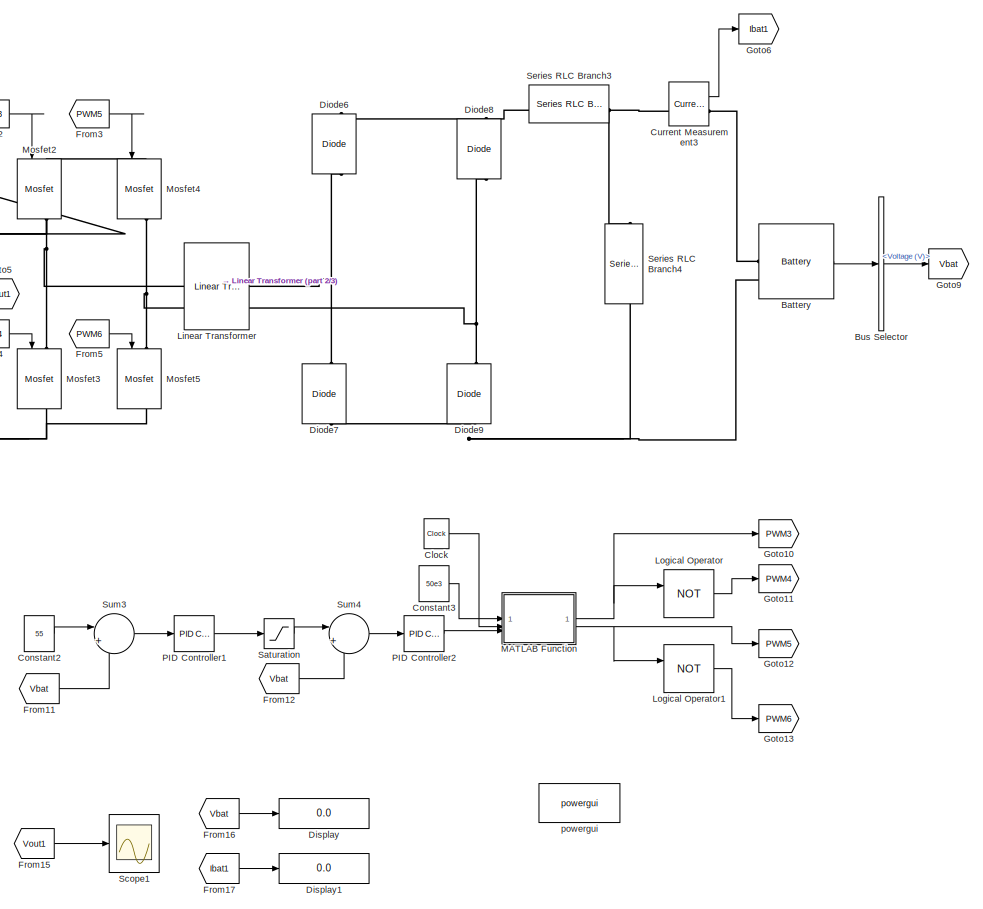
[diagram: root canvas - part 1/3, right side, full height]
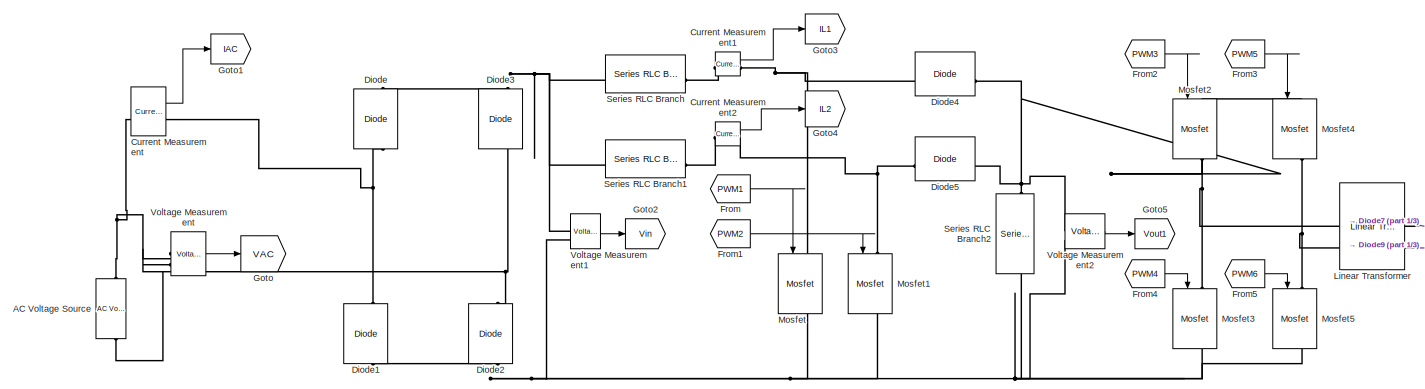
[diagram: root canvas - part 2/3, top center region]
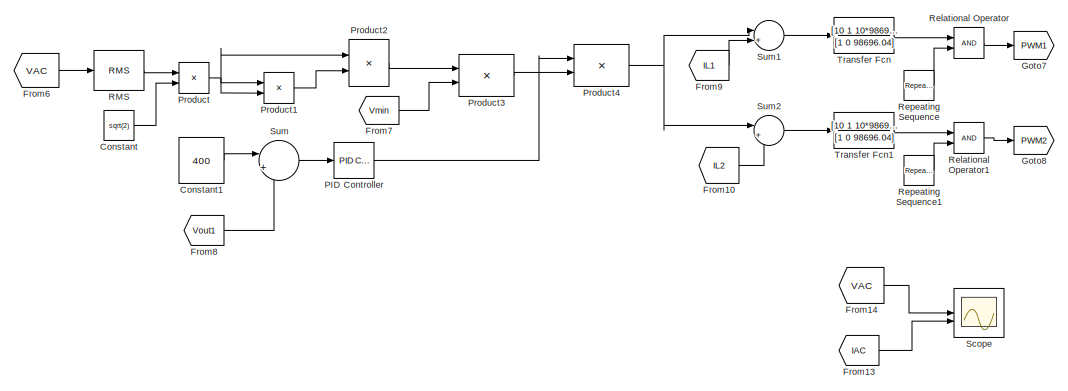
[diagram: root canvas - part 3/3, bottom left region]
MODEL slx_d958ee501d66
KIND model
CONFIG AbsTol = auto
CONFIG EnableMultiTasking = off
CONFIG FixedStep = 1e-6
CONFIG MaxStep = auto
CONFIG MinStep = auto
CONFIG RelTol = 1e-3
CONFIG SampleTimeConstraint = Unconstrained
CONFIG SolverName = ode8
CONFIG StartTime = 0.0
CONFIG StopTime = 1.5
BLOCK [Reference] AC Voltage Source  REF=spsACVoltageSourceLib/AC Voltage Source
  LibrarySourceBlock = sps_lib/Sources/AC Voltage Source
  SourceBlock = spsACVoltageSourceLib/AC Voltage Source
  SourceType = AC Voltage Source
BLOCK [Reference] Battery  REF=spsBatteryLib/Battery
  LibrarySourceBlock = sps_lib/Sources/Battery
  SourceBlock = spsBatteryLib/Battery
  SourceType = Battery
BLOCK [BusSelector] Bus Selector
  OutputSignals = Voltage (V)
BLOCK [Clock] Clock
BLOCK [Constant] Constant
  Value = sqrt(2)
BLOCK [Constant] Constant1
  Value = 400
BLOCK [Constant] Constant2
  Value = 55
BLOCK [Constant] Constant3
  Value = 50e3
BLOCK [Reference] Current Measurement  REF=spsCurrentMeasurementLib/Current Measurement
  LibrarySourceBlock = sps_lib/Sensors and Measurements/Current Measurement
  SourceBlock = spsCurrentMeasurementLib/Current Measurement
  SourceType = Current Measurement
  UserDataPersistent = on
BLOCK [Reference] Current Measurement1  REF=spsCurrentMeasurementLib/Current Measurement
  LibrarySourceBlock = sps_lib/Sensors and Measurements/Current Measurement
  SourceBlock = spsCurrentMeasurementLib/Current Measurement
  SourceType = Current Measurement
  UserDataPersistent = on
BLOCK [Reference] Current Measurement2  REF=spsCurrentMeasurementLib/Current Measurement
  LibrarySourceBlock = sps_lib/Sensors and Measurements/Current Measurement
  SourceBlock = spsCurrentMeasurementLib/Current Measurement
  SourceType = Current Measurement
  UserDataPersistent = on
BLOCK [Reference] Current Measurement3  REF=spsCurrentMeasurementLib/Current Measurement
  LibrarySourceBlock = sps_lib/Sensors and Measurements/Current Measurement
  SourceBlock = spsCurrentMeasurementLib/Current Measurement
  SourceType = Current Measurement
  UserDataPersistent = on
BLOCK [Reference] Diode  REF=spsDiodeLib/Diode
  LibrarySourceBlock = sps_lib/Power Electronics/Diode
  NameLocation = right
  SourceBlock = spsDiodeLib/Diode
  SourceType = Diode
BLOCK [Reference] Diode1  REF=spsDiodeLib/Diode
  LibrarySourceBlock = sps_lib/Power Electronics/Diode
  NameLocation = right
  SourceBlock = spsDiodeLib/Diode
  SourceType = Diode
BLOCK [Reference] Diode2  REF=spsDiodeLib/Diode
  LibrarySourceBlock = sps_lib/Power Electronics/Diode
  NameLocation = right
  SourceBlock = spsDiodeLib/Diode
  SourceType = Diode
BLOCK [Reference] Diode3  REF=spsDiodeLib/Diode
  LibrarySourceBlock = sps_lib/Power Electronics/Diode
  NameLocation = right
  SourceBlock = spsDiodeLib/Diode
  SourceType = Diode
BLOCK [Reference] Diode4  REF=spsDiodeLib/Diode
  LibrarySourceBlock = sps_lib/Power Electronics/Diode
  SourceBlock = spsDiodeLib/Diode
  SourceType = Diode
BLOCK [Reference] Diode5  REF=spsDiodeLib/Diode
  LibrarySourceBlock = sps_lib/Power Electronics/Diode
  SourceBlock = spsDiodeLib/Diode
  SourceType = Diode
BLOCK [Reference] Diode6  REF=spsDiodeLib/Diode
  LibrarySourceBlock = sps_lib/Power Electronics/Diode
  NameLocation = right
  SourceBlock = spsDiodeLib/Diode
  SourceType = Diode
BLOCK [Reference] Diode7  REF=spsDiodeLib/Diode
  LibrarySourceBlock = sps_lib/Power Electronics/Diode
  NameLocation = right
  SourceBlock = spsDiodeLib/Diode
  SourceType = Diode
BLOCK [Reference] Diode8  REF=spsDiodeLib/Diode
  LibrarySourceBlock = sps_lib/Power Electronics/Diode
  NameLocation = right
  SourceBlock = spsDiodeLib/Diode
  SourceType = Diode
BLOCK [Reference] Diode9  REF=spsDiodeLib/Diode
  LibrarySourceBlock = sps_lib/Power Electronics/Diode
  NameLocation = right
  SourceBlock = spsDiodeLib/Diode
  SourceType = Diode
BLOCK [Display] Display
  Decimation = 1
BLOCK [Display] Display1
  Decimation = 1
BLOCK [From] From
  GotoTag = PWM1
BLOCK [From] From1
  GotoTag = PWM2
BLOCK [From] From10
  GotoTag = IL2
BLOCK [From] From11
  GotoTag = Vbat
BLOCK [From] From12
  GotoTag = Vbat
BLOCK [From] From13
  GotoTag = IAC
BLOCK [From] From14
  GotoTag = VAC
BLOCK [From] From15
  GotoTag = Vout1
BLOCK [From] From16
  GotoTag = Vbat
BLOCK [From] From17
  GotoTag = Ibat1
BLOCK [From] From2
  GotoTag = PWM3
BLOCK [From] From3
  GotoTag = PWM5
BLOCK [From] From4
  GotoTag = PWM4
BLOCK [From] From5
  GotoTag = PWM6
BLOCK [From] From6
  GotoTag = VAC
BLOCK [From] From7
  GotoTag = Vmin
BLOCK [From] From8
  GotoTag = Vout1
BLOCK [From] From9
  GotoTag = IL1
BLOCK [Goto] Goto
  GotoTag = VAC
BLOCK [Goto] Goto1
  GotoTag = IAC
BLOCK [Goto] Goto10
  GotoTag = PWM3
BLOCK [Goto] Goto11
  GotoTag = PWM4
BLOCK [Goto] Goto12
  GotoTag = PWM5
BLOCK [Goto] Goto13
  GotoTag = PWM6
BLOCK [Goto] Goto2
  GotoTag = Vin
BLOCK [Goto] Goto3
  GotoTag = IL1
BLOCK [Goto] Goto4
  GotoTag = IL2
BLOCK [Goto] Goto5
  GotoTag = Vout1
BLOCK [Goto] Goto6
  GotoTag = Ibat1
BLOCK [Goto] Goto7
  GotoTag = PWM1
BLOCK [Goto] Goto8
  GotoTag = PWM2
BLOCK [Goto] Goto9
  GotoTag = Vbat
BLOCK [Reference] Linear Transformer  REF=spsLinearTransformerLib/Linear Transformer
  LibrarySourceBlock = sps_lib/Power Grid Elements/Linear Transformer
  SourceBlock = spsLinearTransformerLib/Linear Transformer
  SourceType = Linear Transformer
BLOCK [Logic] Logical Operator
  AllPortsSameDT = off
  Operator = NOT
  OutDataTypeStr = boolean
BLOCK [Logic] Logical Operator1
  AllPortsSameDT = off
  Operator = NOT
  OutDataTypeStr = boolean
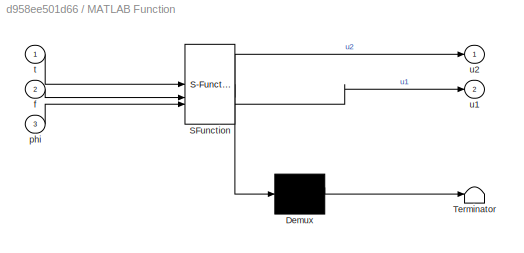
BLOCK [SubSystem] MATLAB Function
  ErrorFcn = Stateflow.Translate.translate
  PermitHierarchicalResolution = ExplicitOnly
  SFBlockType = MATLAB Function
  TreatAsAtomicUnit = on
BLOCK [Demux] MATLAB Function/ Demux 
  Outputs = 1
BLOCK [S-Function] MATLAB Function/ SFunction 
  EnableBusSupport = on
  FunctionName = sf_sfun
  PortCounts = [3 3]
  SFcnIsStateOwnerBlock = off
  SFunctionDeploymentMode = off
  Tag = Stateflow S-Function 2
BLOCK [Terminator] MATLAB Function/ Terminator 
BLOCK [Inport] MATLAB Function/f
  Port = 2
BLOCK [Inport] MATLAB Function/phi
  Port = 3
BLOCK [Inport] MATLAB Function/t
BLOCK [Outport] MATLAB Function/u1
  Port = 2
BLOCK [Outport] MATLAB Function/u2
BLOCK [Reference] Mosfet  REF=spsMosfetLib/Mosfet
  LibrarySourceBlock = sps_lib/Power Electronics/Mosfet
  NameLocation = left
  SourceBlock = spsMosfetLib/Mosfet
  SourceType = Mosfet
BLOCK [Reference] Mosfet1  REF=spsMosfetLib/Mosfet
  LibrarySourceBlock = sps_lib/Power Electronics/Mosfet
  NameLocation = left
  SourceBlock = spsMosfetLib/Mosfet
  SourceType = Mosfet
BLOCK [Reference] Mosfet2  REF=spsMosfetLib/Mosfet
  LibrarySourceBlock = sps_lib/Power Electronics/Mosfet
  NameLocation = left
  SourceBlock = spsMosfetLib/Mosfet
  SourceType = Mosfet
BLOCK [Reference] Mosfet3  REF=spsMosfetLib/Mosfet
  LibrarySourceBlock = sps_lib/Power Electronics/Mosfet
  NameLocation = left
  SourceBlock = spsMosfetLib/Mosfet
  SourceType = Mosfet
BLOCK [Reference] Mosfet4  REF=spsMosfetLib/Mosfet
  LibrarySourceBlock = sps_lib/Power Electronics/Mosfet
  NameLocation = left
  SourceBlock = spsMosfetLib/Mosfet
  SourceType = Mosfet
BLOCK [Reference] Mosfet5  REF=spsMosfetLib/Mosfet
  LibrarySourceBlock = sps_lib/Power Electronics/Mosfet
  NameLocation = left
  SourceBlock = spsMosfetLib/Mosfet
  SourceType = Mosfet
BLOCK [Reference] PID Controller  REF=slpidlib/PID Controller
  LibrarySourceBlock = simulink/Continuous/PID Controller
  SourceBlock = slpidlib/PID Controller
  SourceType = PID 1dof
BLOCK [Reference] PID Controller1  REF=slpidlib/PID Controller
  LibrarySourceBlock = simulink/Continuous/PID Controller
  SourceBlock = slpidlib/PID Controller
  SourceType = PID 1dof
BLOCK [Reference] PID Controller2  REF=slpidlib/PID Controller
  LibrarySourceBlock = simulink/Continuous/PID Controller
  SourceBlock = slpidlib/PID Controller
  SourceType = PID 1dof
BLOCK [Product] Product
BLOCK [Product] Product1
BLOCK [Product] Product2
  Inputs = /*
BLOCK [Product] Product3
BLOCK [Product] Product4
BLOCK [Reference] RMS  REF=spsRMSLib/RMS
  LibrarySourceBlock = sps_lib/Sensors and Measurements/RMS
  SourceBlock = spsRMSLib/RMS
  SourceType = RMS
BLOCK [RelationalOperator] Relational Operator
  InputSameDT = off
  OutDataTypeStr = boolean
  RndMeth = Simplest
BLOCK [RelationalOperator] Relational Operator1
  InputSameDT = off
  OutDataTypeStr = boolean
  RndMeth = Simplest
BLOCK [Reference] Repeating Sequence  REF=simulink/Sources/Repeating
Sequence
  SourceBlock = simulink/Sources/Repeating\nSequence
  SourceType = Repeating table
BLOCK [Reference] Repeating Sequence1  REF=simulink/Sources/Repeating
Sequence
  SourceBlock = simulink/Sources/Repeating\nSequence
  SourceType = Repeating table
BLOCK [Saturate] Saturation
  LowerLimit = 0
  UpperLimit = 37.5
BLOCK [Scope] Scope
  Floating = off
  NumInputPorts = 2
  ScopeSpecificationString = Simulink.scopes.TimeScopeBlockCfg('CurrentConfiguration', extmgr.ConfigurationSet(extmgr.Configuration('Core','General UI',true),extmgr.Configuration('Core','Source UI',true),extmgr.Configuration('Sources','WiredSimulink',true),extmgr.Configuration('Visuals','Time Domain',true,'SerializedDisplays',{struct('MinYLimReal','-406.5864','MaxYLimReal','406.5864','YLabelReal','','MinYLimMag',' 0.00000','M...<+2127ch>
BLOCK [Scope] Scope1
  Floating = off
  NumInputPorts = 1
  ScopeSpecificationString = Simulink.scopes.TimeScopeBlockCfg('CurrentConfiguration', extmgr.ConfigurationSet(extmgr.Configuration('Core','General UI',true),extmgr.Configuration('Core','Source UI',true),extmgr.Configuration('Sources','WiredSimulink',true,'DataLoggingVariableName','ScopeData1'),extmgr.Configuration('Visuals','Time Domain',true,'SerializedDisplays',{struct('MinYLimReal','-52.64967','MaxYLimReal','473.84707','Y...<+1431ch>
BLOCK [Reference] Series RLC Branch  REF=spsSeriesRLCBranchLib/Series RLC Branch
  LibrarySourceBlock = sps_lib/Passives/Series RLC Branch
  SourceBlock = spsSeriesRLCBranchLib/Series RLC Branch
  SourceType = Series RLC Branch
BLOCK [Reference] Series RLC Branch1  REF=spsSeriesRLCBranchLib/Series RLC Branch
  LibrarySourceBlock = sps_lib/Passives/Series RLC Branch
  SourceBlock = spsSeriesRLCBranchLib/Series RLC Branch
  SourceType = Series RLC Branch
BLOCK [Reference] Series RLC Branch2  REF=spsSeriesRLCBranchLib/Series RLC Branch
  LibrarySourceBlock = sps_lib/Passives/Series RLC Branch
  NameLocation = left
  SourceBlock = spsSeriesRLCBranchLib/Series RLC Branch
  SourceType = Series RLC Branch
BLOCK [Reference] Series RLC Branch3  REF=spsSeriesRLCBranchLib/Series RLC Branch
  LibrarySourceBlock = sps_lib/Passives/Series RLC Branch
  SourceBlock = spsSeriesRLCBranchLib/Series RLC Branch
  SourceType = Series RLC Branch
BLOCK [Reference] Series RLC Branch4  REF=spsSeriesRLCBranchLib/Series RLC Branch
  LibrarySourceBlock = sps_lib/Passives/Series RLC Branch
  NameLocation = left
  SourceBlock = spsSeriesRLCBranchLib/Series RLC Branch
  SourceType = Series RLC Branch
BLOCK [Sum] Sum
  Inputs = |+-
BLOCK [Sum] Sum1
  Inputs = |+-
BLOCK [Sum] Sum2
  Inputs = |+-
BLOCK [Sum] Sum3
  Inputs = |+-
BLOCK [Sum] Sum4
  Inputs = |+-
BLOCK [TransferFcn] Transfer Fcn
  Denominator = [1 0 98696.04]
  Numerator = [10 1 10*98696.04]
BLOCK [TransferFcn] Transfer Fcn1
  Denominator = [1 0 98696.04]
  Numerator = [10 1 10*98696.04]
BLOCK [Reference] Voltage Measurement  REF=spsVoltageMeasurementLib/Voltage Measurement
  LibrarySourceBlock = sps_lib/Sensors and Measurements/Voltage Measurement
  SourceBlock = spsVoltageMeasurementLib/Voltage Measurement
  SourceType = Voltage Measurement
  UserDataPersistent = on
BLOCK [Reference] Voltage Measurement1  REF=spsVoltageMeasurementLib/Voltage Measurement
  LibrarySourceBlock = sps_lib/Sensors and Measurements/Voltage Measurement
  SourceBlock = spsVoltageMeasurementLib/Voltage Measurement
  SourceType = Voltage Measurement
  UserDataPersistent = on
BLOCK [Reference] Voltage Measurement2  REF=spsVoltageMeasurementLib/Voltage Measurement
  LibrarySourceBlock = sps_lib/Sensors and Measurements/Voltage Measurement
  SourceBlock = spsVoltageMeasurementLib/Voltage Measurement
  SourceType = Voltage Measurement
  UserDataPersistent = on
BLOCK [Reference] powergui  REF=sps_lib/powergui
  LibrarySourceBlock = sps_lib/powergui
  Priority = 1
  SourceBlock = sps_lib/powergui
  SourceType = PSB option menu block
LINE Battery:1 -> Bus Selector:1
LINE Bus Selector:1 -> Goto9:1
LINE Clock:1 -> MATLAB Function:2
LINE Constant1:1 -> Sum:1
LINE Constant2:1 -> Sum3:1
LINE Constant3:1 -> MATLAB Function:1
LINE Constant:1 -> Product:2
LINE Current Measurement1:1 -> Goto3:1
LINE Current Measurement2:1 -> Goto4:1
LINE Current Measurement3:1 -> Goto6:1
LINE Current Measurement:1 -> Goto1:1
LINE From10:1 -> Sum2:2
LINE From11:1 -> Sum3:2
LINE From12:1 -> Sum4:2
LINE From13:1 -> Scope:2
LINE From14:1 -> Scope:1
LINE From15:1 -> Scope1:1
LINE From16:1 -> Display:1
LINE From17:1 -> Display1:1
LINE From1:1 -> Mosfet1:1
LINE From2:1 -> Mosfet2:1
LINE From3:1 -> Mosfet4:1
LINE From4:1 -> Mosfet3:1
LINE From5:1 -> Mosfet5:1
LINE From6:1 -> RMS:1
LINE From7:1 -> Product3:2
LINE From8:1 -> Sum:2
LINE From9:1 -> Sum1:2
LINE From:1 -> Mosfet:1
LINE Logical Operator1:1 -> Goto13:1
LINE Logical Operator:1 -> Goto11:1
NET MATLAB Function:1 -> Goto10:1, Logical Operator:1
NET MATLAB Function:2 -> Goto12:1, Logical Operator1:1
LINE PID Controller1:1 -> Saturation:1
LINE PID Controller2:1 -> MATLAB Function:3
LINE PID Controller:1 -> Product4:1
LINE Product1:1 -> Product2:2
LINE Product2:1 -> Product3:1
LINE Product3:1 -> Product4:2
NET Product4:1 -> Sum1:1, Sum2:1
NET Product:1 -> Product1:1, Product1:2, Product2:1
LINE RMS:1 -> Product:1
LINE Relational Operator1:1 -> Goto8:1
LINE Relational Operator:1 -> Goto7:1
LINE Repeating Sequence1:1 -> Relational Operator1:2
LINE Repeating Sequence:1 -> Relational Operator:2
LINE Saturation:1 -> Sum4:1
LINE Sum1:1 -> Transfer Fcn:1
LINE Sum2:1 -> Transfer Fcn1:1
LINE Sum3:1 -> PID Controller1:1
LINE Sum4:1 -> PID Controller2:1
LINE Sum:1 -> PID Controller:1
LINE Transfer Fcn1:1 -> Relational Operator1:1
LINE Transfer Fcn:1 -> Relational Operator:1
LINE Voltage Measurement1:1 -> Goto2:1
LINE Voltage Measurement2:1 -> Goto5:1
LINE Voltage Measurement:1 -> Goto:1
PNET net1: AC Voltage Source:LConn1 -- Diode2:RConn1 -- Diode3:LConn1 -- Voltage Measurement:LConn2
PNET net2: AC Voltage Source:RConn1 -- Current Measurement:LConn1 -- Voltage Measurement:LConn1
PLINE Battery:LConn1 -- Current Measurement3:RConn1
PNET net3: Battery:LConn2 -- Diode7:LConn1 -- Diode9:LConn1 -- Series RLC Branch4:RConn1
PLINE Current Measurement1:LConn1 -- Series RLC Branch:RConn1
PNET net4: Current Measurement1:RConn1 -- Diode4:LConn1 -- Mosfet:LConn1
PLINE Current Measurement2:LConn1 -- Series RLC Branch1:RConn1
PNET net5: Current Measurement2:RConn1 -- Diode5:LConn1 -- Mosfet1:LConn1
PNET net6: Current Measurement3:LConn1 -- Series RLC Branch3:RConn1 -- Series RLC Branch4:LConn1
PNET net7: Current Measurement:RConn1 -- Diode1:RConn1 -- Diode:LConn1
PNET net8: Diode1:LConn1 -- Diode2:LConn1 -- Mosfet1:RConn1 -- Mosfet3:RConn1 -- Mosfet5:RConn1 -- Mosfet:RConn1 -- Series RLC Branch2:RConn1 -- Voltage Measurement1:LConn2 -- Voltage Measurement2:LConn2
PNET net9: Diode3:RConn1 -- Diode:RConn1 -- Series RLC Branch1:LConn1 -- Series RLC Branch:LConn1 -- Voltage Measurement1:LConn1
PNET net10: Diode4:RConn1 -- Diode5:RConn1 -- Mosfet2:LConn1 -- Mosfet4:LConn1 -- Series RLC Branch2:LConn1 -- Voltage Measurement2:LConn1
PNET net11: Diode6:LConn1 -- Diode7:RConn1 -- Linear Transformer:RConn1
PNET net12: Diode6:RConn1 -- Diode8:RConn1 -- Series RLC Branch3:LConn1
PNET net13: Diode8:LConn1 -- Diode9:RConn1 -- Linear Transformer:RConn2
PNET net14: Linear Transformer:LConn1 -- Mosfet2:RConn1 -- Mosfet3:LConn1
PNET net15: Linear Transformer:LConn2 -- Mosfet4:RConn1 -- Mosfet5:LConn1
note: NET lines group one-source signal fan-out (src -> all destinations, sorted); 1:1 wires keep LINE; PNET lines group multi-terminal physical nets as a canonical sorted terminal list (undirected conserving connections); 2-terminal nets keep the pairwise PLINE form
CHART MATLAB Function states=1 transitions=1
  STATE_LABEL 'eML_blk_kernel()'
  STATE_LABEL 'SCRIPT:\nfunction [u2, u1] = fcn(t,f, phi)\nTf = 1/f;\nu1 = 0;\nu2 = 0;\ny1 = mod(t,Tf);\nif y1<Tf/2\n    u1 =1;\nend \nt_phi=Tf*phi/360;\ny2 = mod(t+t_phi,Tf);\nif y2<Tf/2\n    u2 = 1;\nend \n\n\n'
CHART  states=0 transitions=0
